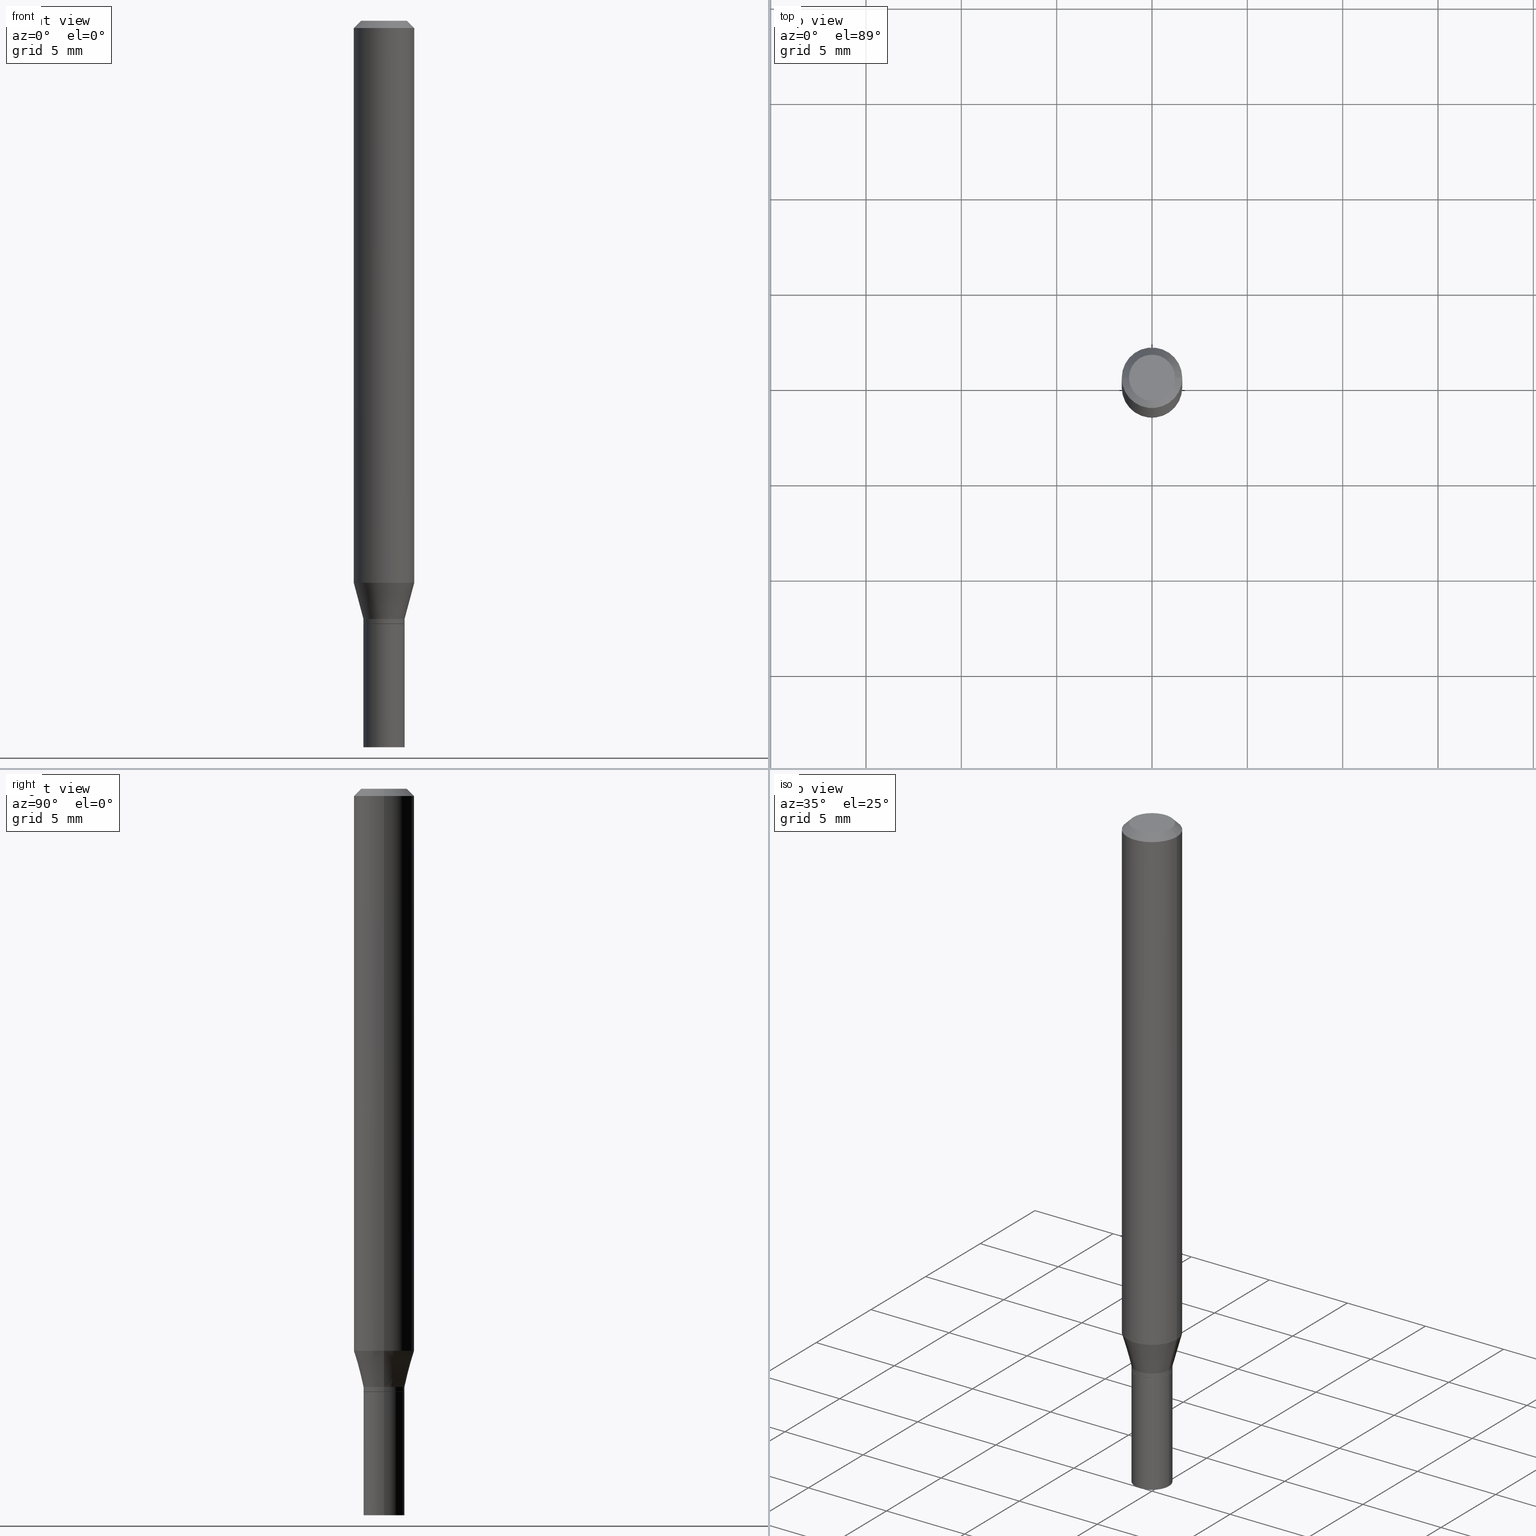
[diagram: canonical four-view strip — front | top / right | iso, engineering-drawing reading convention]
A machine part, canonical four-view strip (front | top / right | iso — engineering-drawing reading convention). The complete STEP part file that produces these views, byte-faithful:
ISO-10303-21;
HEADER;
FILE_DESCRIPTION (( 'STEP AP203' ),
    '1' );
FILE_NAME ('01218.STEP',
    '2024-03-20T00:09:55',
    ( '' ),
    ( '' ),
    'SwSTEP 2.0',
    'SolidWorks 2023',
    '' );
FILE_SCHEMA (( 'CONFIG_CONTROL_DESIGN' ));
ENDSEC;

DATA;
#1 = AXIS2_PLACEMENT_3D ( 'NONE', #73, #177, #39 ) ;
#2 = EDGE_CURVE ( 'NONE', #409, #297, #368, .T. ) ;
#3 = LENGTH_MEASURE_WITH_UNIT ( LENGTH_MEASURE( 0.02539999999999999897 ), #160 );
#4 = DIRECTION ( 'NONE',  ( -1.000000000000000000, 6.982962677686265922E-15, -4.876176775795935793E-29 ) ) ;
#5 = APPROVAL_DATE_TIME ( #154, #457 ) ;
#6 = DIRECTION ( 'NONE',  ( -2.445468806185136877E-29, 3.491481338843145188E-15, 1.000000000000000000 ) ) ;
#7 = COORDINATED_UNIVERSAL_TIME_OFFSET ( 5, 0, .BEHIND. ) ;
#8 = ADVANCED_FACE ( 'NONE', ( #347 ), #48, .T. ) ;
#9 = CARTESIAN_POINT ( 'NONE',  ( 0.000000000000000000, 0.000000000000000000, 0.000000000000000000 ) ) ;
#10 = AXIS2_PLACEMENT_3D ( 'NONE', #223, #292, #148 ) ;
#11 = MANIFOLD_SOLID_BREP ( 'Body-Move/Copy2[2]', #80 ) ;
#12 = CIRCLE ( 'NONE', #44, 0.04199999999999999567 ) ;
#13 = ORIENTED_EDGE ( 'NONE', *, *, #419, .F. ) ;
#14 = PERSON_AND_ORGANIZATION_ROLE ( 'classification_officer' ) ;
#15 = CARTESIAN_POINT ( 'NONE',  ( 3.020153975638643988E-29, -4.311979453471284998E-15, -1.235000000000000098 ) ) ;
#16 = LINE ( 'NONE', #332, #346 ) ;
#17 = DIRECTION ( 'NONE',  ( 1.000000000000000000, -6.982962677686266711E-15, 0.000000000000000000 ) ) ;
#18 = ADVANCED_FACE ( 'NONE', ( #450 ), #371, .T. ) ;
#19 = ORGANIZATION ( 'UNSPECIFIED', 'UNSPECIFIED', '' ) ;
#20 = VERTEX_POINT ( 'NONE', #63 ) ;
#21 = EDGE_LOOP ( 'NONE', ( #422, #62 ) ) ;
#22 = VERTEX_POINT ( 'NONE', #58 ) ;
#23 = ADVANCED_FACE ( 'NONE', ( #102 ), #64, .T. ) ;
#24 = VERTEX_POINT ( 'NONE', #349 ) ;
#25 = CIRCLE ( 'NONE', #167, 0.06250000000000000000 ) ;
#26 = VERTEX_POINT ( 'NONE', #242 ) ;
#27 = CARTESIAN_POINT ( 'NONE',  ( 3.044608663700495534E-29, -4.346894266859716647E-15, -1.245000000000000329 ) ) ;
#28 = ORIENTED_EDGE ( 'NONE', *, *, #226, .T. ) ;
#29 = ORIENTED_EDGE ( 'NONE', *, *, #52, .F. ) ;
#30 = EDGE_CURVE ( 'NONE', #26, #20, #306, .T. ) ;
#31 = PERSON_AND_ORGANIZATION ( #462, #19 ) ;
#32 = ORIENTED_EDGE ( 'NONE', *, *, #180, .F. ) ;
#33 = VERTEX_POINT ( 'NONE', #205 ) ;
#34 = APPROVAL_STATUS ( 'not_yet_approved' ) ;
#35 = APPROVAL ( #394, 'UNSPECIFIED' ) ;
#36 = AXIS2_PLACEMENT_3D ( 'NONE', #281, #164, #98 ) ;
#37 = CIRCLE ( 'NONE', #434, 0.06250000000000000000 ) ;
#38 = DIRECTION ( 'NONE',  ( 0.2588190451025209615, 1.565188264969624926E-15, 0.9659258262890682012 ) ) ;
#39 = DIRECTION ( 'NONE',  ( 1.000000000000000000, 0.000000000000000000, 0.000000000000000000 ) ) ;
#40 = CYLINDRICAL_SURFACE ( 'NONE', #379, 0.04249999999999999611 ) ;
#41 = FACE_OUTER_BOUND ( 'NONE', #342, .T. ) ;
#42 = COORDINATED_UNIVERSAL_TIME_OFFSET ( 5, 0, .BEHIND. ) ;
#43 = CARTESIAN_POINT ( 'NONE',  ( 0.04199999999999999567, -4.640178699322540290E-15, -1.245000000000000329 ) ) ;
#44 = AXIS2_PLACEMENT_3D ( 'NONE', #93, #374, #237 ) ;
#45 = FACE_OUTER_BOUND ( 'NONE', #369, .T. ) ;
#46 = CARTESIAN_POINT ( 'NONE',  ( 3.668203209277704895E-29, -5.237222008264718177E-15, -1.500000000000000222 ) ) ;
#47 = CARTESIAN_POINT ( 'NONE',  ( 0.000000000000000000, 0.000000000000000000, 0.000000000000000000 ) ) ;
#48 = CONICAL_SURFACE ( 'NONE', #229, 0.04199999999999999567, 0.7853981633974739252 ) ;
#49 = AXIS2_PLACEMENT_3D ( 'NONE', #15, #158, #401 ) ;
#50 = PERSON_AND_ORGANIZATION ( #462, #19 ) ;
#51 = DIRECTION ( 'NONE',  ( 2.445468806185136597E-29, -3.491481338843145583E-15, -1.000000000000000000 ) ) ;
#52 = EDGE_CURVE ( 'NONE', #169, #33, #136, .T. ) ;
#53 = APPLICATION_CONTEXT ( 'configuration controlled 3d designs of mechanical parts and assemblies' ) ;
#54 = DIRECTION ( 'NONE',  ( -2.445468806185136597E-29, 3.491481338843145583E-15, 1.000000000000000000 ) ) ;
#55 = ADVANCED_FACE ( 'NONE', ( #170 ), #298, .T. ) ;
#56 = LOCAL_TIME ( 20, 9, 55.00000000000000000, #402 ) ;
#57 = ORIENTED_EDGE ( 'NONE', *, *, #59, .F. ) ;
#58 = CARTESIAN_POINT ( 'NONE',  ( -0.04199999999999999567, -4.045817090666364680E-15, -1.245000000000000329 ) ) ;
#59 = EDGE_CURVE ( 'NONE', #33, #420, #415, .T. ) ;
#60 = ORIENTED_EDGE ( 'NONE', *, *, #313, .T. ) ;
#61 = LINE ( 'NONE', #280, #145 ) ;
#62 = ORIENTED_EDGE ( 'NONE', *, *, #265, .T. ) ;
#63 = CARTESIAN_POINT ( 'NONE',  ( -0.06250000000000000000, -3.607282528616397190E-15, -1.160358983848622350 ) ) ;
#64 = CONICAL_SURFACE ( 'NONE', #36, 0.06250000000000000000, 0.7853981633974450594 ) ;
#65 = APPROVAL_PERSON_ORGANIZATION ( #114, #35, #352 ) ;
#66 = ORIENTED_EDGE ( 'NONE', *, *, #337, .T. ) ;
#67 = VERTEX_POINT ( 'NONE', #391 ) ;
#68 = APPLICATION_CONTEXT ( 'configuration controlled 3d designs of mechanical parts and assemblies' ) ;
#69 = DIMENSIONAL_EXPONENTS ( 1.000000000000000000, 0.000000000000000000, 0.000000000000000000, 0.000000000000000000, 0.000000000000000000, 0.000000000000000000, 0.000000000000000000 ) ;
#70 = DIRECTION ( 'NONE',  ( 1.000000000000000000, -6.982962677686275388E-15, 0.000000000000000000 ) ) ;
#71 =( CONVERSION_BASED_UNIT ( 'INCH', #3 ) LENGTH_UNIT ( ) NAMED_UNIT ( #69 ) );
#72 = LINE ( 'NONE', #353, #432 ) ;
#73 = CARTESIAN_POINT ( 'NONE',  ( 0.000000000000000000, 0.000000000000000000, 0.000000000000000000 ) ) ;
#74 =( GEOMETRIC_REPRESENTATION_CONTEXT ( 3 ) GLOBAL_UNCERTAINTY_ASSIGNED_CONTEXT ( ( #266 ) ) GLOBAL_UNIT_ASSIGNED_CONTEXT ( ( #71, #389, #324 ) ) REPRESENTATION_CONTEXT ( 'NONE', 'WORKASPACE' ) );
#75 = CARTESIAN_POINT ( 'NONE',  ( 0.04249999999999999611, -5.533997922066385616E-15, -1.500000000000000222 ) ) ;
#76 = EDGE_CURVE ( 'NONE', #461, #416, #25, .T. ) ;
#77 = LINE ( 'NONE', #439, #190 ) ;
#78 = CARTESIAN_POINT ( 'NONE',  ( -0.04249999999999999611, 3.019806626980425514E-16, -2.090547413358334859E-30 ) ) ;
#79 = COORDINATED_UNIVERSAL_TIME_OFFSET ( 5, 0, .BEHIND. ) ;
#80 = CLOSED_SHELL ( 'NONE', ( #403, #8, #380, #316, #410, #243, #204, #23, #199, #304, #55, #278 ) ) ;
#81 = DIRECTION ( 'NONE',  ( 2.438088387897960049E-29, -3.491481338843145188E-15, -1.000000000000000000 ) ) ;
#82 = CARTESIAN_POINT ( 'NONE',  ( 0.000000000000000000, 0.000000000000000000, 0.000000000000000000 ) ) ;
#83 = ADVANCED_FACE ( 'NONE', ( #113 ), #108, .F. ) ;
#84 = PERSON_AND_ORGANIZATION ( #462, #19 ) ;
#85 = DIRECTION ( 'NONE',  ( 1.000000000000000000, -6.982962677686267499E-15, 4.884662768193073002E-29 ) ) ;
#86 = FACE_OUTER_BOUND ( 'NONE', #311, .T. ) ;
#87 = AXIS2_PLACEMENT_3D ( 'NONE', #328, #387, #321 ) ;
#88 = AXIS2_PLACEMENT_3D ( 'NONE', #46, #400, #359 ) ;
#89 = DESIGN_CONTEXT ( 'detailed design', #68, 'design' ) ;
#90 = ADVANCED_FACE ( 'NONE', ( #253 ), #40, .T. ) ;
#91 = DIRECTION ( 'NONE',  ( -2.445468806185136597E-29, 3.491481338843145583E-15, 1.000000000000000000 ) ) ;
#92 = ORIENTED_EDGE ( 'NONE', *, *, #313, .F. ) ;
#93 = CARTESIAN_POINT ( 'NONE',  ( 3.044608663700495534E-29, -4.346894266859716647E-15, -1.245000000000000329 ) ) ;
#94 = ORIENTED_EDGE ( 'NONE', *, *, #226, .F. ) ;
#95 = CIRCLE ( 'NONE', #221, 0.04249999999999991979 ) ;
#96 = CIRCLE ( 'NONE', #412, 0.04249999999999999611 ) ;
#97 = EDGE_LOOP ( 'NONE', ( #131, #426, #453, #344 ) ) ;
#98 = DIRECTION ( 'NONE',  ( -1.000000000000000000, 6.982962677686266711E-15, 0.000000000000000000 ) ) ;
#99 = VERTEX_POINT ( 'NONE', #395 ) ;
#100 = ORIENTED_EDGE ( 'NONE', *, *, #30, .F. ) ;
#101 = ORIENTED_EDGE ( 'NONE', *, *, #59, .T. ) ;
#102 = FACE_OUTER_BOUND ( 'NONE', #207, .T. ) ;
#103 = EDGE_LOOP ( 'NONE', ( #350, #173, #317, #458 ) ) ;
#104 = VECTOR ( 'NONE', #38, 39.37007874015748143 ) ;
#105 = CONICAL_SURFACE ( 'NONE', #49, 0.04249999999999993366, 0.2617993877991496299 ) ;
#106 = VERTEX_POINT ( 'NONE', #75 ) ;
#107 = CARTESIAN_POINT ( 'NONE',  ( 0.04249999999999991979, -2.967759138016658126E-16, 2.072375129713268648E-30 ) ) ;
#108 = PLANE ( 'NONE',  #152 ) ;
#109 = CC_DESIGN_DATE_AND_TIME_ASSIGNMENT ( #228, #193, ( #399 ) ) ;
#110 = LINE ( 'NONE', #186, #445 ) ;
#111 = PERSON_AND_ORGANIZATION ( #462, #19 ) ;
#112 = AXIS2_PLACEMENT_3D ( 'NONE', #261, #396, #330 ) ;
#113 = FACE_OUTER_BOUND ( 'NONE', #376, .T. ) ;
#114 = PERSON_AND_ORGANIZATION ( #462, #19 ) ;
#115 = DIRECTION ( 'NONE',  ( -1.000000000000000000, 6.982962677686265922E-15, -4.876176775795935793E-29 ) ) ;
#116 = CARTESIAN_POINT ( 'NONE',  ( 0.000000000000000000, 0.000000000000000000, 0.000000000000000000 ) ) ;
#117 = EDGE_CURVE ( 'NONE', #297, #409, #213, .T. ) ;
#118 = DIRECTION ( 'NONE',  ( -2.445468806185136597E-29, 3.491481338843145583E-15, 1.000000000000000000 ) ) ;
#119 = PRODUCT_DEFINITION ( 'UNKNOWN', '', #124, #89 ) ;
#120 = DIRECTION ( 'NONE',  ( 1.000000000000000000, -6.982962677686275388E-15, 0.000000000000000000 ) ) ;
#121 = DIRECTION ( 'NONE',  ( -2.445468806185136597E-29, 3.491481338843145583E-15, 1.000000000000000000 ) ) ;
#122 = EDGE_CURVE ( 'NONE', #106, #409, #110, .T. ) ;
#123 = FACE_OUTER_BOUND ( 'NONE', #103, .T. ) ;
#124 = PRODUCT_DEFINITION_FORMATION_WITH_SPECIFIED_SOURCE ( 'ANY', '', #189, .NOT_KNOWN. ) ;
#125 = DIRECTION ( 'NONE',  ( -2.445468806185136597E-29, 3.491481338843145583E-15, 1.000000000000000000 ) ) ;
#126 = ORIENTED_EDGE ( 'NONE', *, *, #143, .F. ) ;
#127 = CARTESIAN_POINT ( 'NONE',  ( 3.043385929297403293E-29, -4.345148526190295932E-15, -1.244500000000000384 ) ) ;
#128 = DIRECTION ( 'NONE',  ( 0.7071067811865656694, -2.468850131082446387E-15, 0.7071067811865294761 ) ) ;
#129 = DIRECTION ( 'NONE',  ( -2.445468806185136597E-29, 3.491481338843145583E-15, 1.000000000000000000 ) ) ;
#130 = CARTESIAN_POINT ( 'NONE',  ( 0.000000000000000000, 0.000000000000000000, 0.000000000000000000 ) ) ;
#131 = ORIENTED_EDGE ( 'NONE', *, *, #149, .F. ) ;
#132 = EDGE_CURVE ( 'NONE', #269, #461, #72, .T. ) ;
#133 = ORIENTED_EDGE ( 'NONE', *, *, #149, .T. ) ;
#134 = EDGE_CURVE ( 'NONE', #24, #297, #428, .T. ) ;
#135 = ORIENTED_EDGE ( 'NONE', *, *, #122, .T. ) ;
#136 = LINE ( 'NONE', #418, #411 ) ;
#137 = VECTOR ( 'NONE', #375, 39.37007874015748143 ) ;
#138 = AXIS2_PLACEMENT_3D ( 'NONE', #150, #196, #85 ) ;
#139 = ORIENTED_EDGE ( 'NONE', *, *, #122, .F. ) ;
#140 = CC_DESIGN_PERSON_AND_ORGANIZATION_ASSIGNMENT ( #84, #14, ( #399 ) ) ;
#141 = CARTESIAN_POINT ( 'NONE',  ( -2.427605901612193195E-45, 3.465977845273231710E-31, 9.926955091278351202E-17 ) ) ;
#142 = CARTESIAN_POINT ( 'NONE',  ( 0.000000000000000000, 0.000000000000000000, 0.000000000000000000 ) ) ;
#143 = EDGE_CURVE ( 'NONE', #420, #269, #181, .T. ) ;
#144 = DIRECTION ( 'NONE',  ( -2.438088387897960049E-29, 3.491481338843145188E-15, 1.000000000000000000 ) ) ;
#145 = VECTOR ( 'NONE', #201, 39.37007874015748143 ) ;
#146 = CARTESIAN_POINT ( 'NONE',  ( 2.837621698978488538E-29, -4.051371738466459806E-15, -1.160358983848622350 ) ) ;
#147 = DATE_TIME_ROLE ( 'creation_date' ) ;
#148 = DIRECTION ( 'NONE',  ( 1.000000000000000000, -6.982962677686265133E-15, 0.000000000000000000 ) ) ;
#149 = EDGE_CURVE ( 'NONE', #22, #455, #77, .T. ) ;
#150 = CARTESIAN_POINT ( 'NONE',  ( -2.427605901612193195E-45, 3.465977845273231710E-31, 9.926955091278351202E-17 ) ) ;
#151 = APPROVAL_STATUS ( 'not_yet_approved' ) ;
#152 = AXIS2_PLACEMENT_3D ( 'NONE', #259, #81, #115 ) ;
#153 = DIRECTION ( 'NONE',  ( -1.000000000000000000, 6.982962677686266711E-15, 0.000000000000000000 ) ) ;
#154 = DATE_AND_TIME ( #270, #56 ) ;
#155 = DIRECTION ( 'NONE',  ( 1.000000000000000000, -6.982962677686265922E-15, 4.876176775795935793E-29 ) ) ;
#156 = DIRECTION ( 'NONE',  ( 1.000000000000000000, -6.982962677686267499E-15, 4.876176775795935232E-29 ) ) ;
#157 = SHAPE_DEFINITION_REPRESENTATION ( #362, #183 ) ;
#158 = DIRECTION ( 'NONE',  ( -2.445468806185136597E-29, 3.491481338843145583E-15, 1.000000000000000000 ) ) ;
#159 = AXIS2_PLACEMENT_3D ( 'NONE', #268, #125, #120 ) ;
#160 =( LENGTH_UNIT ( ) NAMED_UNIT ( * ) SI_UNIT ( $, .METRE. ) );
#161 = CC_DESIGN_DATE_AND_TIME_ASSIGNMENT ( #326, #147, ( #119 ) ) ;
#162 = CARTESIAN_POINT ( 'NONE',  ( 0.04249999999999993366, -4.608755367272951648E-15, -1.235000000000000098 ) ) ;
#163 = MANIFOLD_SOLID_BREP ( 'Body-Move/Copy2[1]', #286 ) ;
#164 = DIRECTION ( 'NONE',  ( 2.445468806185136597E-29, -3.491481338843145583E-15, -1.000000000000000000 ) ) ;
#165 = CARTESIAN_POINT ( 'NONE',  ( -0.06250000000000000000, -1.607782769424491024E-15, -0.01499999999999999944 ) ) ;
#166 = ORIENTED_EDGE ( 'NONE', *, *, #323, .T. ) ;
#167 = AXIS2_PLACEMENT_3D ( 'NONE', #291, #322, #212 ) ;
#168 = AXIS2_PLACEMENT_3D ( 'NONE', #367, #118, #305 ) ;
#169 = VERTEX_POINT ( 'NONE', #43 ) ;
#170 = FACE_OUTER_BOUND ( 'NONE', #97, .T. ) ;
#171 = EDGE_CURVE ( 'NONE', #67, #416, #356, .T. ) ;
#172 = ORIENTED_EDGE ( 'NONE', *, *, #180, .T. ) ;
#173 = ORIENTED_EDGE ( 'NONE', *, *, #448, .T. ) ;
#174 = DATE_AND_TIME ( #220, #299 ) ;
#175 = ORIENTED_EDGE ( 'NONE', *, *, #340, .T. ) ;
#176 = ORIENTED_EDGE ( 'NONE', *, *, #76, .F. ) ;
#177 = DIRECTION ( 'NONE',  ( 0.000000000000000000, 0.000000000000000000, 1.000000000000000000 ) ) ;
#178 = AXIS2_PLACEMENT_3D ( 'NONE', #285, #454, #310 ) ;
#179 = LOCAL_TIME ( 20, 9, 55.00000000000000000, #7 ) ;
#180 = EDGE_CURVE ( 'NONE', #420, #26, #254, .T. ) ;
#181 = LINE ( 'NONE', #257, #104 ) ;
#182 = CARTESIAN_POINT ( 'NONE',  ( -0.06250000000000000000, 3.840629472727444916E-16, -0.01499999999999999944 ) ) ;
#183 = ADVANCED_BREP_SHAPE_REPRESENTATION ( '01218', ( #163, #11, #1 ), #74 ) ;
#184 = DIRECTION ( 'NONE',  ( -2.445468806185136597E-29, 3.491481338843145583E-15, 1.000000000000000000 ) ) ;
#185 = CIRCLE ( 'NONE', #168, 0.04249999999999991979 ) ;
#186 = CARTESIAN_POINT ( 'NONE',  ( 0.04249999999999999611, -2.967759138016663549E-16, 2.072375129713272502E-30 ) ) ;
#187 = PLANE ( 'NONE',  #345 ) ;
#188 = CARTESIAN_POINT ( 'NONE',  ( -0.04249999999999999611, -4.490077474864174959E-15, -1.245000000000000329 ) ) ;
#189 = PRODUCT ( '01218', '01218', '', ( #431 ) ) ;
#190 = VECTOR ( 'NONE', #218, 39.37007874015748143 ) ;
#191 = ADVANCED_FACE ( 'NONE', ( #45 ), #187, .F. ) ;
#192 = FACE_OUTER_BOUND ( 'NONE', #283, .T. ) ;
#193 = DATE_TIME_ROLE ( 'classification_date' ) ;
#194 = DIRECTION ( 'NONE',  ( 1.000000000000000000, -6.982962677686267499E-15, 4.884662768193073002E-29 ) ) ;
#195 = CARTESIAN_POINT ( 'NONE',  ( 3.044608663700495534E-29, -4.346894266859716647E-15, -1.245000000000000329 ) ) ;
#196 = DIRECTION ( 'NONE',  ( -2.445468806185136597E-29, 3.491481338843145583E-15, 1.000000000000000000 ) ) ;
#197 = AXIS2_PLACEMENT_3D ( 'NONE', #130, #377, #382 ) ;
#198 = VECTOR ( 'NONE', #444, 39.37007874015748143 ) ;
#199 = ADVANCED_FACE ( 'NONE', ( #393 ), #216, .F. ) ;
#200 = ORIENTED_EDGE ( 'NONE', *, *, #448, .F. ) ;
#201 = DIRECTION ( 'NONE',  ( 0.7071067811865452413, -7.319954787623248157E-15, -0.7071067811865497932 ) ) ;
#202 = ORIENTED_EDGE ( 'NONE', *, *, #132, .T. ) ;
#203 = ORIENTED_EDGE ( 'NONE', *, *, #397, .F. ) ;
#204 = ADVANCED_FACE ( 'NONE', ( #41 ), #296, .T. ) ;
#205 = CARTESIAN_POINT ( 'NONE',  ( 0.04249999999999991979, -4.641924439991961794E-15, -1.244500000000000384 ) ) ;
#206 = CIRCLE ( 'NONE', #239, 0.06250000000000000000 ) ;
#207 = EDGE_LOOP ( 'NONE', ( #200, #318, #383, #66 ) ) ;
#208 = ORIENTED_EDGE ( 'NONE', *, *, #2, .T. ) ;
#209 = ORIENTED_EDGE ( 'NONE', *, *, #143, .T. ) ;
#210 = ORIENTED_EDGE ( 'NONE', *, *, #117, .F. ) ;
#211 = PERSON_AND_ORGANIZATION_ROLE ( 'design_owner' ) ;
#212 = DIRECTION ( 'NONE',  ( 1.000000000000000000, -6.982962677686266711E-15, 0.000000000000000000 ) ) ;
#213 = CIRCLE ( 'NONE', #10, 0.04249999999999999611 ) ;
#214 = AXIS2_PLACEMENT_3D ( 'NONE', #341, #273, #241 ) ;
#215 = DIRECTION ( 'NONE',  ( 1.000000000000000000, -6.982962677686267499E-15, 4.876176775795935793E-29 ) ) ;
#216 = PLANE ( 'NONE',  #334 ) ;
#217 = CALENDAR_DATE ( 2024, 19, 3 ) ;
#218 = DIRECTION ( 'NONE',  ( -0.7071067811865656694, 7.493145998870420424E-15, 0.7071067811865294761 ) ) ;
#219 = EDGE_CURVE ( 'NONE', #20, #269, #230, .T. ) ;
#220 = CALENDAR_DATE ( 2024, 19, 3 ) ;
#221 = AXIS2_PLACEMENT_3D ( 'NONE', #127, #129, #414 ) ;
#222 = APPROVAL_PERSON_ORGANIZATION ( #50, #457, #224 ) ;
#223 = CARTESIAN_POINT ( 'NONE',  ( 3.044608663700495534E-29, -4.346894266859716647E-15, -1.245000000000000329 ) ) ;
#224 = APPROVAL_ROLE ( '' ) ;
#225 = CARTESIAN_POINT ( 'NONE',  ( 0.04249999999999999611, -4.643670180661383298E-15, -1.245000000000000329 ) ) ;
#226 = EDGE_CURVE ( 'NONE', #26, #420, #262, .T. ) ;
#227 = CARTESIAN_POINT ( 'NONE',  ( 2.837621698978488538E-29, -4.051371738466459806E-15, -1.160358983848622350 ) ) ;
#228 = DATE_AND_TIME ( #329, #179 ) ;
#229 = AXIS2_PLACEMENT_3D ( 'NONE', #27, #421, #314 ) ;
#230 = CIRCLE ( 'NONE', #441, 0.06250000000000000000 ) ;
#231 = DIRECTION ( 'NONE',  ( -2.445468806185136597E-29, 3.491481338843145583E-15, 1.000000000000000000 ) ) ;
#232 = CC_DESIGN_APPROVAL ( #457, ( #399 ) ) ;
#233 = FACE_OUTER_BOUND ( 'NONE', #247, .T. ) ;
#234 = DIRECTION ( 'NONE',  ( 1.000000000000000000, -6.982962677686267499E-15, 4.876176775795935232E-29 ) ) ;
#235 = EDGE_CURVE ( 'NONE', #67, #99, #452, .T. ) ;
#236 = EDGE_LOOP ( 'NONE', ( #172, #245, #284, #126 ) ) ;
#237 = DIRECTION ( 'NONE',  ( 1.000000000000000000, -6.982962677686275388E-15, 0.000000000000000000 ) ) ;
#238 = EDGE_LOOP ( 'NONE', ( #378, #60, #135, #210 ) ) ;
#239 = AXIS2_PLACEMENT_3D ( 'NONE', #227, #336, #360 ) ;
#240 = ORIENTED_EDGE ( 'NONE', *, *, #132, .F. ) ;
#241 = DIRECTION ( 'NONE',  ( 1.000000000000000000, -6.982962677686275388E-15, 0.000000000000000000 ) ) ;
#242 = CARTESIAN_POINT ( 'NONE',  ( -0.04249999999999993366, -3.808640659694819867E-15, -1.235000000000000098 ) ) ;
#243 = ADVANCED_FACE ( 'NONE', ( #443 ), #105, .T. ) ;
#244 = ORIENTED_EDGE ( 'NONE', *, *, #271, .T. ) ;
#245 = ORIENTED_EDGE ( 'NONE', *, *, #30, .T. ) ;
#246 = EDGE_LOOP ( 'NONE', ( #100, #28, #209, #250 ) ) ;
#247 = EDGE_LOOP ( 'NONE', ( #449, #282, #32, #57 ) ) ;
#248 = AXIS2_PLACEMENT_3D ( 'NONE', #365, #51, #153 ) ;
#249 = ORIENTED_EDGE ( 'NONE', *, *, #340, .F. ) ;
#250 = ORIENTED_EDGE ( 'NONE', *, *, #219, .F. ) ;
#251 = PERSON_AND_ORGANIZATION ( #462, #19 ) ;
#252 = DIRECTION ( 'NONE',  ( -2.445468806185136877E-29, 3.491481338843145188E-15, 1.000000000000000000 ) ) ;
#253 = FACE_OUTER_BOUND ( 'NONE', #279, .T. ) ;
#254 = CIRCLE ( 'NONE', #87, 0.04249999999999993366 ) ;
#255 = APPROVAL_DATE_TIME ( #295, #35 ) ;
#256 = AXIS2_PLACEMENT_3D ( 'NONE', #141, #289, #194 ) ;
#257 = CARTESIAN_POINT ( 'NONE',  ( 0.04249999999999993366, -4.608755367272951648E-15, -1.235000000000000098 ) ) ;
#258 = EDGE_CURVE ( 'NONE', #22, #169, #276, .T. ) ;
#259 = CARTESIAN_POINT ( 'NONE',  ( 2.967759138016967261E-16, 0.04249999999999565237, -1.245000000000000551 ) ) ;
#260 = PERSON_AND_ORGANIZATION ( #462, #19 ) ;
#261 = CARTESIAN_POINT ( 'NONE',  ( 3.020153975638643988E-29, -4.311979453471284998E-15, -1.235000000000000098 ) ) ;
#262 = CIRCLE ( 'NONE', #112, 0.04249999999999993366 ) ;
#263 = CC_DESIGN_SECURITY_CLASSIFICATION ( #399, ( #124 ) ) ;
#264 = DIRECTION ( 'NONE',  ( 1.000000000000000000, -6.982962677686276177E-15, 0.000000000000000000 ) ) ;
#265 = EDGE_CURVE ( 'NONE', #99, #67, #370, .T. ) ;
#266 = UNCERTAINTY_MEASURE_WITH_UNIT (LENGTH_MEASURE( 1.000000000000000082E-05 ), #71, 'distance_accuracy_value', 'NONE');
#267 = CYLINDRICAL_SURFACE ( 'NONE', #309, 0.06250000000000000000 ) ;
#268 = CARTESIAN_POINT ( 'NONE',  ( 3.044608663700495534E-29, -4.346894266859716647E-15, -1.245000000000000329 ) ) ;
#269 = VERTEX_POINT ( 'NONE', #407 ) ;
#270 = CALENDAR_DATE ( 2024, 19, 3 ) ;
#271 = EDGE_CURVE ( 'NONE', #269, #20, #206, .T. ) ;
#272 = DIRECTION ( 'NONE',  ( -2.445468806185136597E-29, 3.491481338843145583E-15, 1.000000000000000000 ) ) ;
#273 = DIRECTION ( 'NONE',  ( -2.445468806185136597E-29, 3.491481338843145583E-15, 1.000000000000000000 ) ) ;
#274 = EDGE_LOOP ( 'NONE', ( #244, #175, #176, #240 ) ) ;
#275 = ORIENTED_EDGE ( 'NONE', *, *, #258, .F. ) ;
#276 = CIRCLE ( 'NONE', #159, 0.04199999999999999567 ) ;
#277 = ORIENTED_EDGE ( 'NONE', *, *, #388, .T. ) ;
#278 = ADVANCED_FACE ( 'NONE', ( #86 ), #338, .T. ) ;
#279 = EDGE_LOOP ( 'NONE', ( #277, #307, #351, #139 ) ) ;
#280 = CARTESIAN_POINT ( 'NONE',  ( 0.06250000000000000000, -4.811533449433679005E-16, -0.01499999999999999944 ) ) ;
#281 = CARTESIAN_POINT ( 'NONE',  ( 3.668203209277705088E-31, -5.237222008264718399E-17, -0.01499999999999999944 ) ) ;
#282 = ORIENTED_EDGE ( 'NONE', *, *, #397, .T. ) ;
#283 = EDGE_LOOP ( 'NONE', ( #13, #275 ) ) ;
#284 = ORIENTED_EDGE ( 'NONE', *, *, #271, .F. ) ;
#285 = CARTESIAN_POINT ( 'NONE',  ( 3.044608663700495534E-29, -4.346894266859716647E-15, -1.245000000000000329 ) ) ;
#286 = CLOSED_SHELL ( 'NONE', ( #90, #191, #18, #83 ) ) ;
#287 = LOCAL_TIME ( 20, 9, 55.00000000000000000, #42 ) ;
#288 = ORIENTED_EDGE ( 'NONE', *, *, #219, .T. ) ;
#289 = DIRECTION ( 'NONE',  ( -2.445468806185136597E-29, 3.491481338843145583E-15, 1.000000000000000000 ) ) ;
#290 = CALENDAR_DATE ( 2024, 19, 3 ) ;
#291 = CARTESIAN_POINT ( 'NONE',  ( 3.668203209277705088E-31, -5.237222008264718399E-17, -0.01499999999999999944 ) ) ;
#292 = DIRECTION ( 'NONE',  ( -2.445468806185136597E-29, 3.491481338843145583E-15, 1.000000000000000000 ) ) ;
#293 = CIRCLE ( 'NONE', #88, 0.04249999999999999611 ) ;
#294 = DIRECTION ( 'NONE',  ( -2.445468806185136597E-29, 3.491481338843145583E-15, 1.000000000000000000 ) ) ;
#295 = DATE_AND_TIME ( #217, #460 ) ;
#296 = CYLINDRICAL_SURFACE ( 'NONE', #446, 0.06250000000000000000 ) ;
#297 = VERTEX_POINT ( 'NONE', #188 ) ;
#298 = CONICAL_SURFACE ( 'NONE', #398, 0.04199999999999999567, 0.7853981633974739252 ) ;
#299 = LOCAL_TIME ( 20, 9, 55.00000000000000000, #427 ) ;
#300 = CONICAL_SURFACE ( 'NONE', #248, 0.06250000000000000000, 0.7853981633974450594 ) ;
#301 = FACE_OUTER_BOUND ( 'NONE', #236, .T. ) ;
#302 = CARTESIAN_POINT ( 'NONE',  ( 3.668203209277705088E-31, -5.237222008264718399E-17, -0.01499999999999999944 ) ) ;
#303 = DIRECTION ( 'NONE',  ( -2.438088387897960049E-29, 3.491481338843145188E-15, 1.000000000000000000 ) ) ;
#304 = ADVANCED_FACE ( 'NONE', ( #192 ), #442, .F. ) ;
#305 = DIRECTION ( 'NONE',  ( 1.000000000000000000, -6.982962677686266711E-15, 0.000000000000000000 ) ) ;
#306 = LINE ( 'NONE', #459, #137 ) ;
#307 = ORIENTED_EDGE ( 'NONE', *, *, #134, .T. ) ;
#308 = CARTESIAN_POINT ( 'NONE',  ( -0.04249999999999991979, -4.043167863492253479E-15, -1.244500000000000384 ) ) ;
#309 = AXIS2_PLACEMENT_3D ( 'NONE', #9, #91, #335 ) ;
#310 = DIRECTION ( 'NONE',  ( 1.000000000000000000, -6.982962677686265133E-15, 0.000000000000000000 ) ) ;
#311 = EDGE_LOOP ( 'NONE', ( #203, #166, #101, #94 ) ) ;
#312 = CARTESIAN_POINT ( 'NONE',  ( 3.044608663700495534E-29, -4.346894266859716647E-15, -1.245000000000000329 ) ) ;
#313 = EDGE_CURVE ( 'NONE', #24, #106, #96, .T. ) ;
#314 = DIRECTION ( 'NONE',  ( 1.000000000000000000, -6.982962677686275388E-15, 0.000000000000000000 ) ) ;
#315 = APPROVAL_DATE_TIME ( #174, #463 ) ;
#316 = ADVANCED_FACE ( 'NONE', ( #440 ), #267, .T. ) ;
#317 = ORIENTED_EDGE ( 'NONE', *, *, #76, .T. ) ;
#318 = ORIENTED_EDGE ( 'NONE', *, *, #235, .F. ) ;
#319 = AXIS2_PLACEMENT_3D ( 'NONE', #82, #54, #234 ) ;
#320 = APPLICATION_PROTOCOL_DEFINITION ( 'international standard', 'config_control_design', 1994, #53 ) ;
#321 = DIRECTION ( 'NONE',  ( 1.000000000000000000, -6.982962677686275388E-15, 0.000000000000000000 ) ) ;
#322 = DIRECTION ( 'NONE',  ( -2.445468806185136597E-29, 3.491481338843145583E-15, 1.000000000000000000 ) ) ;
#323 = EDGE_CURVE ( 'NONE', #455, #33, #185, .T. ) ;
#324 =( NAMED_UNIT ( * ) SI_UNIT ( $, .STERADIAN. ) SOLID_ANGLE_UNIT ( ) );
#325 = DIRECTION ( 'NONE',  ( 1.000000000000000000, -6.982962677686266711E-15, 4.876176775795935793E-29 ) ) ;
#326 = DATE_AND_TIME ( #290, #287 ) ;
#327 = CC_DESIGN_APPROVAL ( #35, ( #119 ) ) ;
#328 = CARTESIAN_POINT ( 'NONE',  ( 3.020153975638643988E-29, -4.311979453471284998E-15, -1.235000000000000098 ) ) ;
#329 = CALENDAR_DATE ( 2024, 19, 3 ) ;
#330 = DIRECTION ( 'NONE',  ( 1.000000000000000000, -6.982962677686275388E-15, 0.000000000000000000 ) ) ;
#331 = CC_DESIGN_PERSON_AND_ORGANIZATION_ASSIGNMENT ( #260, #392, ( #119 ) ) ;
#332 = CARTESIAN_POINT ( 'NONE',  ( -0.04249999999999991979, 3.019806626980420090E-16, -2.090547413358331006E-30 ) ) ;
#333 = PERSON_AND_ORGANIZATION_ROLE ( 'design_supplier' ) ;
#334 = AXIS2_PLACEMENT_3D ( 'NONE', #464, #355, #4 ) ;
#335 = DIRECTION ( 'NONE',  ( 1.000000000000000000, -6.982962677686266711E-15, 4.876176775795935793E-29 ) ) ;
#336 = DIRECTION ( 'NONE',  ( -2.445468806185136597E-29, 3.491481338843145583E-15, 1.000000000000000000 ) ) ;
#337 = EDGE_CURVE ( 'NONE', #416, #461, #37, .T. ) ;
#338 = CYLINDRICAL_SURFACE ( 'NONE', #424, 0.04249999999999991979 ) ;
#339 = CC_DESIGN_APPROVAL ( #463, ( #124 ) ) ;
#340 = EDGE_CURVE ( 'NONE', #20, #416, #447, .T. ) ;
#341 = CARTESIAN_POINT ( 'NONE',  ( 3.020153975638643988E-29, -4.311979453471284998E-15, -1.235000000000000098 ) ) ;
#342 = EDGE_LOOP ( 'NONE', ( #249, #288, #202, #408 ) ) ;
#343 = ORIENTED_EDGE ( 'NONE', *, *, #388, .F. ) ;
#344 = ORIENTED_EDGE ( 'NONE', *, *, #323, .F. ) ;
#345 = AXIS2_PLACEMENT_3D ( 'NONE', #465, #144, #430 ) ;
#346 = VECTOR ( 'NONE', #6, 39.37007874015748143 ) ;
#347 = FACE_OUTER_BOUND ( 'NONE', #456, .T. ) ;
#348 = ORIENTED_EDGE ( 'NONE', *, *, #117, .T. ) ;
#349 = CARTESIAN_POINT ( 'NONE',  ( -0.04249999999999999611, -4.490077474864174959E-15, -1.500000000000000222 ) ) ;
#350 = ORIENTED_EDGE ( 'NONE', *, *, #265, .F. ) ;
#351 = ORIENTED_EDGE ( 'NONE', *, *, #2, .F. ) ;
#352 = APPROVAL_ROLE ( '' ) ;
#353 = CARTESIAN_POINT ( 'NONE',  ( 0.06250000000000000000, -4.364351673553916694E-16, 3.047610484872459871E-30 ) ) ;
#354 = DIRECTION ( 'NONE',  ( -2.445468806185136877E-29, 3.491481338843145188E-15, 1.000000000000000000 ) ) ;
#355 = DIRECTION ( 'NONE',  ( 2.438088387897960049E-29, -3.491481338843145188E-15, -1.000000000000000000 ) ) ;
#356 = LINE ( 'NONE', #182, #451 ) ;
#357 = DIRECTION ( 'NONE',  ( -2.445468806185136877E-29, 3.491481338843145188E-15, 1.000000000000000000 ) ) ;
#358 = CC_DESIGN_PERSON_AND_ORGANIZATION_ASSIGNMENT ( #111, #211, ( #189 ) ) ;
#359 = DIRECTION ( 'NONE',  ( 1.000000000000000000, -6.982962677686276177E-15, 0.000000000000000000 ) ) ;
#360 = DIRECTION ( 'NONE',  ( 1.000000000000000000, -6.982962677686270655E-15, 0.000000000000000000 ) ) ;
#361 = SECURITY_CLASSIFICATION_LEVEL ( 'unclassified' ) ;
#362 = PRODUCT_DEFINITION_SHAPE ( 'NONE', 'NONE',  #119 ) ;
#363 = VECTOR ( 'NONE', #384, 39.37007874015748143 ) ;
#364 = AXIS2_PLACEMENT_3D ( 'NONE', #195, #303, #155 ) ;
#365 = CARTESIAN_POINT ( 'NONE',  ( 3.668203209277705088E-31, -5.237222008264718399E-17, -0.01499999999999999944 ) ) ;
#366 = CYLINDRICAL_SURFACE ( 'NONE', #319, 0.04249999999999991979 ) ;
#367 = CARTESIAN_POINT ( 'NONE',  ( 3.043385929297403293E-29, -4.345148526190295932E-15, -1.244500000000000384 ) ) ;
#368 = CIRCLE ( 'NONE', #178, 0.04249999999999999611 ) ;
#369 = EDGE_LOOP ( 'NONE', ( #343, #92 ) ) ;
#370 = CIRCLE ( 'NONE', #138, 0.04749999999999999362 ) ;
#371 = CYLINDRICAL_SURFACE ( 'NONE', #197, 0.04249999999999999611 ) ;
#372 = CC_DESIGN_PERSON_AND_ORGANIZATION_ASSIGNMENT ( #251, #386, ( #124 ) ) ;
#373 = ORIENTED_EDGE ( 'NONE', *, *, #438, .F. ) ;
#374 = DIRECTION ( 'NONE',  ( -2.445468806185136597E-29, 3.491481338843145583E-15, 1.000000000000000000 ) ) ;
#375 = DIRECTION ( 'NONE',  ( -0.2588190451025209615, 5.211531920934547097E-15, 0.9659258262890682012 ) ) ;
#376 = EDGE_LOOP ( 'NONE', ( #208, #348 ) ) ;
#377 = DIRECTION ( 'NONE',  ( -2.445468806185136597E-29, 3.491481338843145583E-15, 1.000000000000000000 ) ) ;
#378 = ORIENTED_EDGE ( 'NONE', *, *, #134, .F. ) ;
#379 = AXIS2_PLACEMENT_3D ( 'NONE', #142, #433, #215 ) ;
#380 = ADVANCED_FACE ( 'NONE', ( #123 ), #300, .T. ) ;
#381 = APPROVAL_PERSON_ORGANIZATION ( #31, #463, #437 ) ;
#382 = DIRECTION ( 'NONE',  ( 1.000000000000000000, -6.982962677686267499E-15, 4.876176775795935793E-29 ) ) ;
#383 = ORIENTED_EDGE ( 'NONE', *, *, #171, .T. ) ;
#384 = DIRECTION ( 'NONE',  ( -2.445468806185136877E-29, 3.491481338843145188E-15, 1.000000000000000000 ) ) ;
#385 = CC_DESIGN_PERSON_AND_ORGANIZATION_ASSIGNMENT ( #429, #333, ( #124 ) ) ;
#386 = PERSON_AND_ORGANIZATION_ROLE ( 'creator' ) ;
#387 = DIRECTION ( 'NONE',  ( -2.445468806185136597E-29, 3.491481338843145583E-15, 1.000000000000000000 ) ) ;
#388 = EDGE_CURVE ( 'NONE', #106, #24, #293, .T. ) ;
#389 =( NAMED_UNIT ( * ) PLANE_ANGLE_UNIT ( ) SI_UNIT ( $, .RADIAN. ) );
#390 = VECTOR ( 'NONE', #252, 39.37007874015748143 ) ;
#391 = CARTESIAN_POINT ( 'NONE',  ( -0.04749999999999999362, 3.578768372314212971E-16, 9.926955091278110846E-17 ) ) ;
#392 = PERSON_AND_ORGANIZATION_ROLE ( 'creator' ) ;
#393 = FACE_OUTER_BOUND ( 'NONE', #21, .T. ) ;
#394 = APPROVAL_STATUS ( 'not_yet_approved' ) ;
#395 = CARTESIAN_POINT ( 'NONE',  ( 0.04749999999999999362, -4.035134999187576651E-16, 9.926955091278610047E-17 ) ) ;
#396 = DIRECTION ( 'NONE',  ( -2.445468806185136597E-29, 3.491481338843145583E-15, 1.000000000000000000 ) ) ;
#397 = EDGE_CURVE ( 'NONE', #455, #26, #16, .T. ) ;
#398 = AXIS2_PLACEMENT_3D ( 'NONE', #312, #425, #70 ) ;
#399 = SECURITY_CLASSIFICATION ( '', '', #361 ) ;
#400 = DIRECTION ( 'NONE',  ( -2.445468806185136597E-29, 3.491481338843145583E-15, 1.000000000000000000 ) ) ;
#401 = DIRECTION ( 'NONE',  ( 1.000000000000000000, -6.982962677686275388E-15, 0.000000000000000000 ) ) ;
#402 = COORDINATED_UNIVERSAL_TIME_OFFSET ( 5, 0, .BEHIND. ) ;
#403 = ADVANCED_FACE ( 'NONE', ( #233 ), #366, .T. ) ;
#404 = CARTESIAN_POINT ( 'NONE',  ( -0.06250000000000000000, 4.440892098500626162E-16, -3.074334431409316114E-30 ) ) ;
#405 = CONICAL_SURFACE ( 'NONE', #214, 0.04249999999999993366, 0.2617993877991496299 ) ;
#406 = CARTESIAN_POINT ( 'NONE',  ( 3.668203209277704895E-29, -5.237222008264718177E-15, -1.500000000000000222 ) ) ;
#407 = CARTESIAN_POINT ( 'NONE',  ( 0.06250000000000000000, -4.487806905821851475E-15, -1.160358983848622350 ) ) ;
#408 = ORIENTED_EDGE ( 'NONE', *, *, #337, .F. ) ;
#409 = VERTEX_POINT ( 'NONE', #225 ) ;
#410 = ADVANCED_FACE ( 'NONE', ( #301 ), #405, .T. ) ;
#411 = VECTOR ( 'NONE', #128, 39.37007874015748143 ) ;
#412 = AXIS2_PLACEMENT_3D ( 'NONE', #406, #272, #264 ) ;
#413 = ORIENTED_EDGE ( 'NONE', *, *, #419, .T. ) ;
#414 = DIRECTION ( 'NONE',  ( 1.000000000000000000, -6.982962677686266711E-15, 0.000000000000000000 ) ) ;
#415 = LINE ( 'NONE', #107, #363 ) ;
#416 = VERTEX_POINT ( 'NONE', #165 ) ;
#417 = CARTESIAN_POINT ( 'NONE',  ( 0.06250000000000000000, -4.888073874380388472E-16, -0.01499999999999999944 ) ) ;
#418 = CARTESIAN_POINT ( 'NONE',  ( 0.04199999999999999567, -4.640178699322540290E-15, -1.245000000000000329 ) ) ;
#419 = EDGE_CURVE ( 'NONE', #169, #22, #12, .T. ) ;
#420 = VERTEX_POINT ( 'NONE', #162 ) ;
#421 = DIRECTION ( 'NONE',  ( -2.445468806185136597E-29, 3.491481338843145583E-15, 1.000000000000000000 ) ) ;
#422 = ORIENTED_EDGE ( 'NONE', *, *, #235, .T. ) ;
#423 = PRODUCT_RELATED_PRODUCT_CATEGORY ( 'detail', '', ( #189 ) ) ;
#424 = AXIS2_PLACEMENT_3D ( 'NONE', #47, #231, #156 ) ;
#425 = DIRECTION ( 'NONE',  ( -2.445468806185136597E-29, 3.491481338843145583E-15, 1.000000000000000000 ) ) ;
#426 = ORIENTED_EDGE ( 'NONE', *, *, #258, .T. ) ;
#427 = COORDINATED_UNIVERSAL_TIME_OFFSET ( 5, 0, .BEHIND. ) ;
#428 = LINE ( 'NONE', #78, #390 ) ;
#429 = PERSON_AND_ORGANIZATION ( #462, #19 ) ;
#430 = DIRECTION ( 'NONE',  ( 1.000000000000000000, -6.982962677686265922E-15, 4.876176775795935793E-29 ) ) ;
#431 = MECHANICAL_CONTEXT ( 'NONE', #53, 'mechanical' ) ;
#432 = VECTOR ( 'NONE', #357, 39.37007874015748143 ) ;
#433 = DIRECTION ( 'NONE',  ( -2.445468806185136597E-29, 3.491481338843145583E-15, 1.000000000000000000 ) ) ;
#434 = AXIS2_PLACEMENT_3D ( 'NONE', #302, #121, #17 ) ;
#435 = APPLICATION_PROTOCOL_DEFINITION ( 'international standard', 'config_control_design', 1994, #68 ) ;
#436 = DIRECTION ( 'NONE',  ( 1.000000000000000000, -6.982962677686270655E-15, 0.000000000000000000 ) ) ;
#437 = APPROVAL_ROLE ( '' ) ;
#438 = EDGE_CURVE ( 'NONE', #33, #455, #95, .T. ) ;
#439 = CARTESIAN_POINT ( 'NONE',  ( -0.04199999999999999567, -4.048466317840475093E-15, -1.245000000000000329 ) ) ;
#440 = FACE_OUTER_BOUND ( 'NONE', #274, .T. ) ;
#441 = AXIS2_PLACEMENT_3D ( 'NONE', #146, #294, #436 ) ;
#442 = PLANE ( 'NONE',  #364 ) ;
#443 = FACE_OUTER_BOUND ( 'NONE', #246, .T. ) ;
#444 = DIRECTION ( 'NONE',  ( -2.445468806185136877E-29, 3.491481338843145188E-15, 1.000000000000000000 ) ) ;
#445 = VECTOR ( 'NONE', #354, 39.37007874015748143 ) ;
#446 = AXIS2_PLACEMENT_3D ( 'NONE', #116, #184, #325 ) ;
#447 = LINE ( 'NONE', #404, #198 ) ;
#448 = EDGE_CURVE ( 'NONE', #99, #461, #61, .T. ) ;
#449 = ORIENTED_EDGE ( 'NONE', *, *, #438, .T. ) ;
#450 = FACE_OUTER_BOUND ( 'NONE', #238, .T. ) ;
#451 = VECTOR ( 'NONE', #466, 39.37007874015748143 ) ;
#452 = CIRCLE ( 'NONE', #256, 0.04749999999999999362 ) ;
#453 = ORIENTED_EDGE ( 'NONE', *, *, #52, .T. ) ;
#454 = DIRECTION ( 'NONE',  ( -2.445468806185136597E-29, 3.491481338843145583E-15, 1.000000000000000000 ) ) ;
#455 = VERTEX_POINT ( 'NONE', #308 ) ;
#456 = EDGE_LOOP ( 'NONE', ( #413, #133, #373, #29 ) ) ;
#457 = APPROVAL ( #151, 'UNSPECIFIED' ) ;
#458 = ORIENTED_EDGE ( 'NONE', *, *, #171, .F. ) ;
#459 = CARTESIAN_POINT ( 'NONE',  ( -0.04249999999999993366, -4.009998790773243334E-15, -1.235000000000000098 ) ) ;
#460 = LOCAL_TIME ( 20, 9, 55.00000000000000000, #79 ) ;
#461 = VERTEX_POINT ( 'NONE', #417 ) ;
#462 = PERSON ( 'UNSPECIFIED', 'UNSPECIFIED', 'UNSPECIFIED', ('UNSPECIFIED'), ('UNSPECIFIED'), ('UNSPECIFIED') ) ;
#463 = APPROVAL ( #34, 'UNSPECIFIED' ) ;
#464 = CARTESIAN_POINT ( 'NONE',  ( 3.316907271900976096E-16, 0.04749999999999999362, -1.162105881386576343E-16 ) ) ;
#465 = CARTESIAN_POINT ( 'NONE',  ( 3.584916967085606921E-29, -5.356492647442320375E-15, -1.500000000000000222 ) ) ;
#466 = DIRECTION ( 'NONE',  ( -0.7071067811865452413, 2.468850131082233000E-15, -0.7071067811865497932 ) ) ;
ENDSEC;
END-ISO-10303-21;
